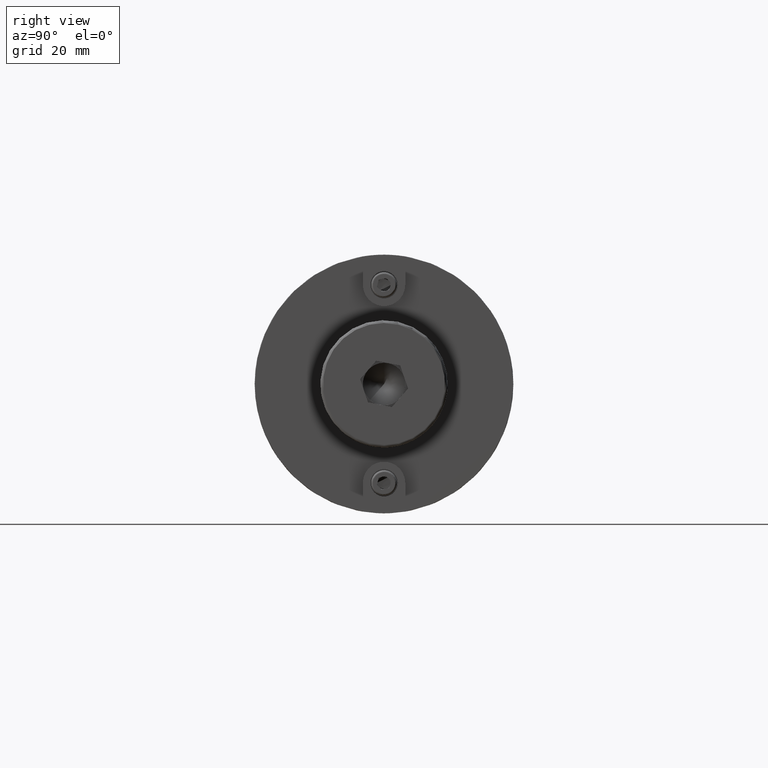
[diagram: clean part render]
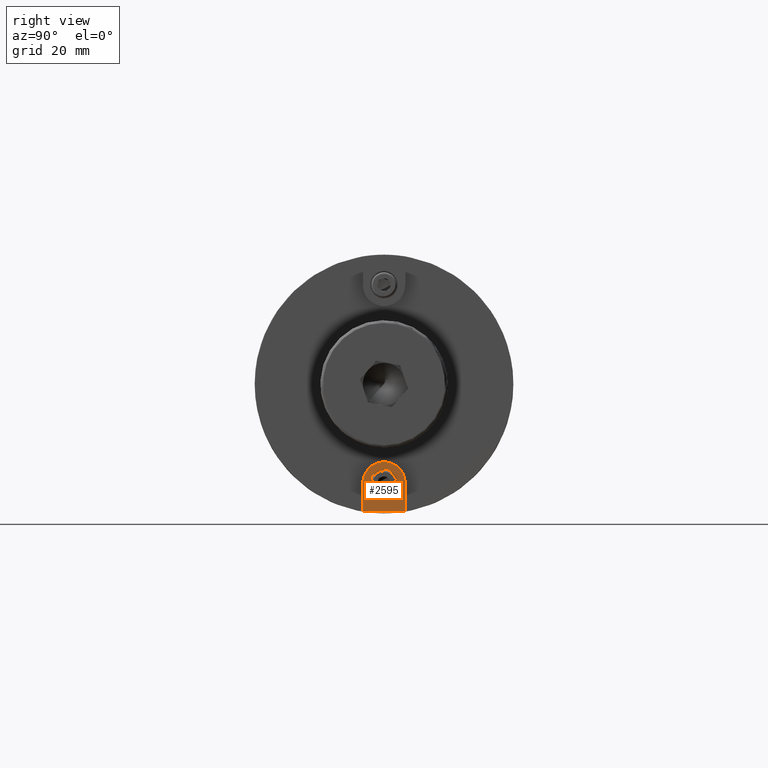
[diagram: same view with one face highlighted and labeled with its STEP entity id]
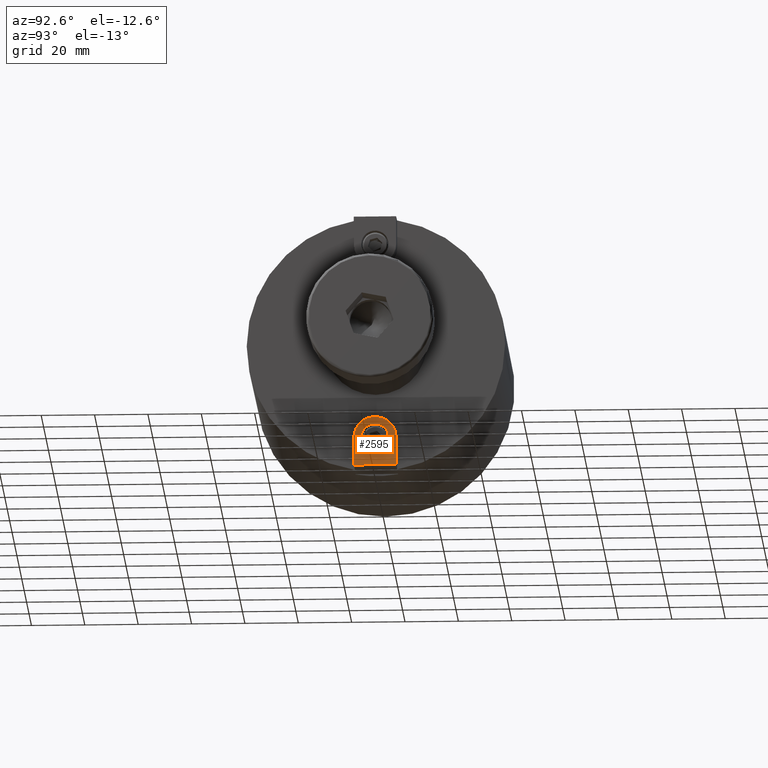
[diagram: same view with one face highlighted and labeled with its STEP entity id]
A machine part, right view. The second image highlights one B-rep face of the part: STEP entity #2595.
A second angle (auxiliary view) of the same face is appended — the face is thin or edge-on in the first view.
In plain terms, the highlighted planar face has unit normal (1, 0, 0).
Its self-contained STEP definition (entity closure, byte-faithful):
#565=FACE_BOUND('',#999,.T.);
#700=CIRCLE('',#2988,5.15);
#703=CIRCLE('',#2993,7.935);
#852=FACE_OUTER_BOUND('',#998,.T.);
#998=EDGE_LOOP('',(#2255,#2256,#2257,#2258));
#999=EDGE_LOOP('',(#2259));
#1131=LINE('',#4866,#1268);
#1134=LINE('',#4872,#1271);
#1137=LINE('',#4876,#1274);
#1268=VECTOR('',#3620,10.);
#1271=VECTOR('',#3625,10.);
#1274=VECTOR('',#3630,10.);
#1453=VERTEX_POINT('',#4846);
#1457=VERTEX_POINT('',#4857);
#1458=VERTEX_POINT('',#4859);
#1460=VERTEX_POINT('',#4865);
#1462=VERTEX_POINT('',#4871);
#1724=EDGE_CURVE('',#1453,#1453,#700,.T.);
#1730=EDGE_CURVE('',#1458,#1457,#703,.T.);
#1733=EDGE_CURVE('',#1460,#1458,#1131,.T.);
#1736=EDGE_CURVE('',#1462,#1460,#1134,.T.);
#1739=EDGE_CURVE('',#1457,#1462,#1137,.T.);
#2255=ORIENTED_EDGE('',*,*,#1739,.T.);
#2256=ORIENTED_EDGE('',*,*,#1736,.T.);
#2257=ORIENTED_EDGE('',*,*,#1733,.T.);
#2258=ORIENTED_EDGE('',*,*,#1730,.T.);
#2259=ORIENTED_EDGE('',*,*,#1724,.T.);
#2485=PLANE('',#2997);
#2595=ADVANCED_FACE('',(#852,#565),#2485,.T.);
#2988=AXIS2_PLACEMENT_3D('',#4847,#3601,#3602);
#2993=AXIS2_PLACEMENT_3D('',#4860,#3614,#3615);
#2997=AXIS2_PLACEMENT_3D('',#4877,#3631,#3632);
#3601=DIRECTION('center_axis',(0.,-1.,0.));
#3602=DIRECTION('ref_axis',(1.,0.,0.));
#3614=DIRECTION('center_axis',(0.,1.,0.));
#3615=DIRECTION('ref_axis',(-1.,0.,7.29973822924E-17));
#3620=DIRECTION('',(-1.0508499996452E-16,0.,1.));
#3625=DIRECTION('',(-1.,0.,-1.39914684892899E-16));
#3630=DIRECTION('',(3.15254999893561E-16,0.,-1.));
#3631=DIRECTION('center_axis',(0.,1.,0.));
#3632=DIRECTION('ref_axis',(0.,0.,1.));
#4846=CARTESIAN_POINT('',(-5.15,15.87,6.30693101560887E-16));
#4847=CARTESIAN_POINT('Origin',(0.,15.87,0.));
#4857=CARTESIAN_POINT('',(7.935,15.87,6.28867985115417E-16));
#4859=CARTESIAN_POINT('',(-7.935,15.87,5.79234228490194E-16));
#4860=CARTESIAN_POINT('Origin',(0.,15.87,0.));
#4865=CARTESIAN_POINT('',(-7.935,15.87,-10.565));
#4866=CARTESIAN_POINT('',(-7.935,15.87,-10.565));
#4871=CARTESIAN_POINT('',(7.935,15.87,-10.565));
#4872=CARTESIAN_POINT('',(7.935,15.87,-10.565));
#4876=CARTESIAN_POINT('',(7.935,15.87,0.));
#4877=CARTESIAN_POINT('Origin',(5.55111512312578E-16,15.87,-1.315));